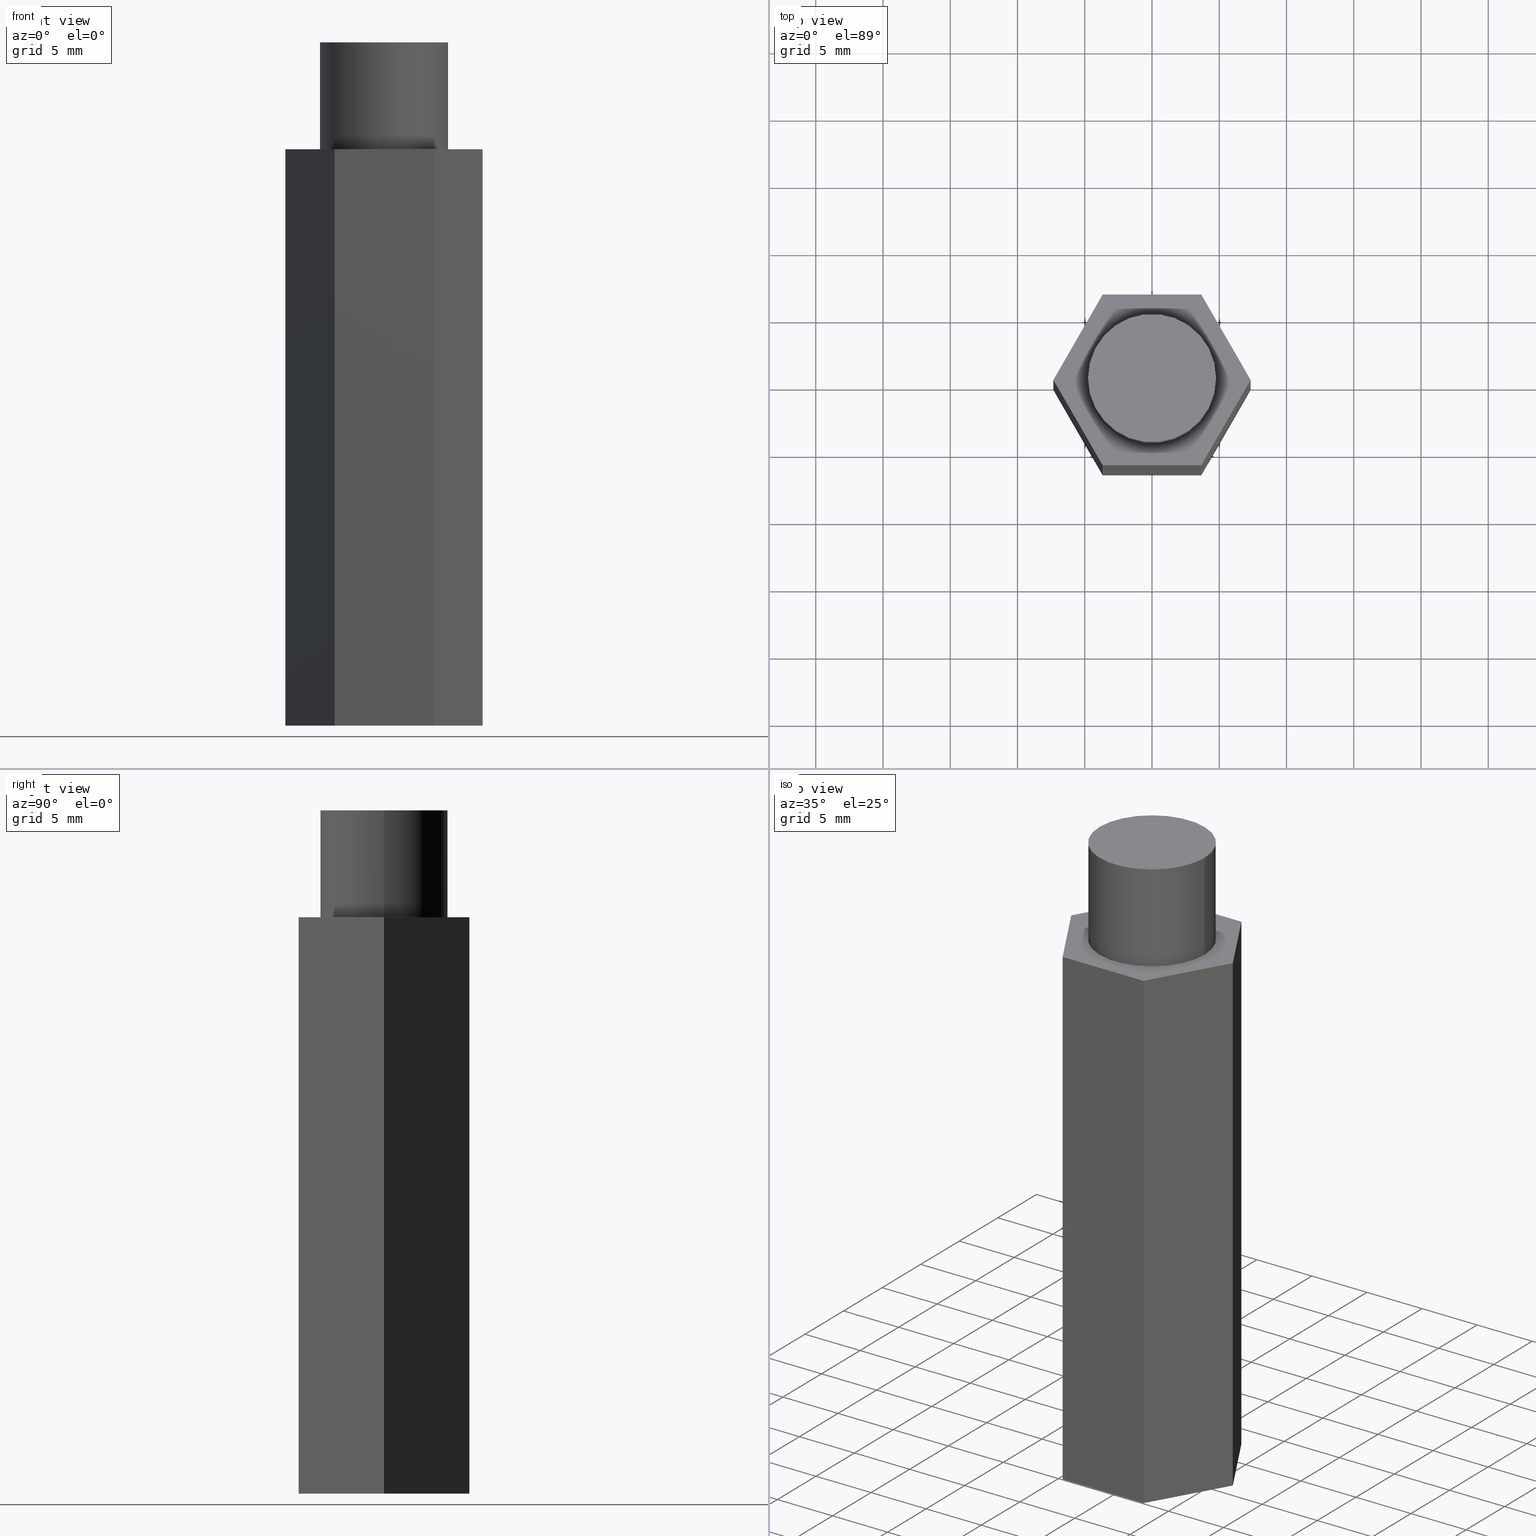
[diagram: canonical four-view strip — front | top / right | iso, engineering-drawing reading convention]
A machine part, canonical four-view strip (front | top / right | iso — engineering-drawing reading convention). The complete STEP part file that produces these views, byte-faithful:
ISO-10303-21;
HEADER;
FILE_DESCRIPTION (( 'STEP AP214' ),
    '1' );
FILE_NAME ('am-0923 Worm Shaft for Worm Gearbox REV2.STEP',
    '2018-06-21T17:12:18',
    ( '' ),
    ( '' ),
    'SwSTEP 2.0',
    'SolidWorks 2017',
    '' );
FILE_SCHEMA (( 'AUTOMOTIVE_DESIGN' ));
ENDSEC;

DATA;
#1 = DIRECTION ( 'NONE',  ( 1.000000000000000000, 0.0000000000000000000, 0.0000000000000000000 ) ) ;
#2 = CARTESIAN_POINT ( 'NONE',  ( -0.1443375672974064600, 0.2500000000000000600, 1.687000000000000100 ) ) ;
#3 = AXIS2_PLACEMENT_3D ( 'NONE', #278, #13, #280 ) ;
#4 = LENGTH_MEASURE_WITH_UNIT ( LENGTH_MEASURE( 0.02539999999999999900 ), #222 );
#5 = EDGE_LOOP ( 'NONE', ( #18, #346, #33, #70 ) ) ;
#6 = ORIENTED_EDGE ( 'NONE', *, *, #327, .F. ) ;
#7 = AXIS2_PLACEMENT_3D ( 'NONE', #204, #34, #60 ) ;
#8 = FACE_OUTER_BOUND ( 'NONE', #333, .T. ) ;
#9 = VERTEX_POINT ( 'NONE', #105 ) ;
#10 = DIRECTION ( 'NONE',  ( -0.5000000000000000000, -0.8660254037844386000, 0.0000000000000000000 ) ) ;
#11 = EDGE_CURVE ( 'NONE', #209, #261, #54, .T. ) ;
#12 = PLANE ( 'NONE',  #115 ) ;
#13 = DIRECTION ( 'NONE',  ( -0.8660254037844386000, -0.5000000000000003300, 0.0000000000000000000 ) ) ;
#14 = ORIENTED_EDGE ( 'NONE', *, *, #48, .F. ) ;
#15 = FILL_AREA_STYLE ('',( #313 ) ) ;
#16 = VERTEX_POINT ( 'NONE', #102 ) ;
#17 = CARTESIAN_POINT ( 'NONE',  ( -0.1443375672974062700, -0.2500000000000001100, 1.687000000000000100 ) ) ;
#18 = ORIENTED_EDGE ( 'NONE', *, *, #272, .T. ) ;
#19 = ADVANCED_BREP_SHAPE_REPRESENTATION ( 'am-0923 Worm Shaft for Worm Gearbox REV2', ( #77, #238 ), #195 ) ;
#20 = FACE_OUTER_BOUND ( 'NONE', #318, .T. ) ;
#21 = CARTESIAN_POINT ( 'NONE',  ( 0.0000000000000000000, 0.0000000000000000000, 2.000000000000000000 ) ) ;
#22 = CIRCLE ( 'NONE', #253, 0.1873999999999999800 ) ;
#23 = ORIENTED_EDGE ( 'NONE', *, *, #247, .F. ) ;
#24 = CLOSED_SHELL ( 'NONE', ( #49, #291, #101, #237, #212, #184, #210, #294, #265, #235, #129 ) ) ;
#25 = AXIS2_PLACEMENT_3D ( 'NONE', #160, #355, #1 ) ;
#26 = CARTESIAN_POINT ( 'NONE',  ( -0.2886751345948129200, 3.414809992080329000E-017, 1.687000000000000100 ) ) ;
#27 = ORIENTED_EDGE ( 'NONE', *, *, #292, .T. ) ;
#28 = SURFACE_SIDE_STYLE ('',( #139 ) ) ;
#29 = CARTESIAN_POINT ( 'NONE',  ( -0.1873999999999999800, 0.0000000000000000000, 1.687000000000000100 ) ) ;
#30 = CARTESIAN_POINT ( 'NONE',  ( -0.2886751345948129200, 3.414809992080329000E-017, 0.0000000000000000000 ) ) ;
#31 = VECTOR ( 'NONE', #66, 39.37007874015748100 ) ;
#32 = FILL_AREA_STYLE_COLOUR ( '', #51 ) ;
#33 = ORIENTED_EDGE ( 'NONE', *, *, #202, .F. ) ;
#34 = DIRECTION ( 'NONE',  ( 0.0000000000000000000, 0.0000000000000000000, 1.000000000000000000 ) ) ;
#35 = DIRECTION ( 'NONE',  ( 0.0000000000000000000, 0.0000000000000000000, 1.000000000000000000 ) ) ;
#36 = CYLINDRICAL_SURFACE ( 'NONE', #348, 0.1873999999999999800 ) ;
#37 = EDGE_LOOP ( 'NONE', ( #285, #82, #182, #306 ) ) ;
#38 = DIRECTION ( 'NONE',  ( 0.5000000000000003300, -0.8660254037844383700, 0.0000000000000000000 ) ) ;
#39 = VECTOR ( 'NONE', #38, 39.37007874015748100 ) ;
#40 =( NAMED_UNIT ( * ) SI_UNIT ( $, .STERADIAN. ) SOLID_ANGLE_UNIT ( ) );
#41 = EDGE_LOOP ( 'NONE', ( #225, #187 ) ) ;
#42 = EDGE_CURVE ( 'NONE', #16, #80, #163, .T. ) ;
#43 = PRODUCT_DEFINITION_SHAPE ( 'NONE', 'NONE',  #130 ) ;
#44 = SURFACE_STYLE_FILL_AREA ( #15 ) ;
#45 = LINE ( 'NONE', #331, #301 ) ;
#46 = DIMENSIONAL_EXPONENTS ( 1.000000000000000000, 0.0000000000000000000, 0.0000000000000000000, 0.0000000000000000000, 0.0000000000000000000, 0.0000000000000000000, 0.0000000000000000000 ) ;
#47 = ORIENTED_EDGE ( 'NONE', *, *, #310, .T. ) ;
#48 = EDGE_CURVE ( 'NONE', #256, #316, #107, .T. ) ;
#49 = ADVANCED_FACE ( 'NONE', ( #62 ), #205, .T. ) ;
#50 = CARTESIAN_POINT ( 'NONE',  ( 0.1443375672974065200, -0.2500000000000000600, 0.0000000000000000000 ) ) ;
#51 = COLOUR_RGB ( '',0.7921568627450980000, 0.8196078431372548800, 0.9333333333333333500 ) ;
#52 = MECHANICAL_DESIGN_GEOMETRIC_PRESENTATION_REPRESENTATION (  '', ( #264 ), #67 ) ;
#53 = EDGE_LOOP ( 'NONE', ( #134, #352, #96, #108, #169, #71 ) ) ;
#54 = LINE ( 'NONE', #50, #111 ) ;
#55 = CARTESIAN_POINT ( 'NONE',  ( -0.1873999999999999800, 0.0000000000000000000, 2.000000000000000000 ) ) ;
#56 = DIRECTION ( 'NONE',  ( 1.000000000000000000, 0.0000000000000000000, -0.0000000000000000000 ) ) ;
#57 = PLANE ( 'NONE',  #97 ) ;
#58 = EDGE_LOOP ( 'NONE', ( #76, #132, #286, #260, #74, #200 ) ) ;
#59 = CARTESIAN_POINT ( 'NONE',  ( -0.2886751345948129200, 3.414809992080329000E-017, 0.0000000000000000000 ) ) ;
#60 = DIRECTION ( 'NONE',  ( 1.000000000000000000, 0.0000000000000000000, -0.0000000000000000000 ) ) ;
#61 = DIRECTION ( 'NONE',  ( -0.0000000000000000000, -0.0000000000000000000, -1.000000000000000000 ) ) ;
#62 = FACE_OUTER_BOUND ( 'NONE', #211, .T. ) ;
#63 = CARTESIAN_POINT ( 'NONE',  ( 0.2886751345948129200, -7.469896857675719000E-018, 0.0000000000000000000 ) ) ;
#64 = DIRECTION ( 'NONE',  ( -1.000000000000000000, -1.182924880895401300E-016, 0.0000000000000000000 ) ) ;
#65 = ORIENTED_EDGE ( 'NONE', *, *, #181, .T. ) ;
#66 = DIRECTION ( 'NONE',  ( 1.000000000000000000, 2.365849761790803000E-016, 0.0000000000000000000 ) ) ;
#67 =( GEOMETRIC_REPRESENTATION_CONTEXT ( 3 ) GLOBAL_UNCERTAINTY_ASSIGNED_CONTEXT ( ( #180 ) ) GLOBAL_UNIT_ASSIGNED_CONTEXT ( ( #216, #334, #303 ) ) REPRESENTATION_CONTEXT ( 'NONE', 'WORKASPACE' ) );
#68 = PRODUCT_CONTEXT ( 'NONE', #152, 'mechanical' ) ;
#69 = VECTOR ( 'NONE', #64, 39.37007874015748100 ) ;
#70 = ORIENTED_EDGE ( 'NONE', *, *, #147, .T. ) ;
#71 = ORIENTED_EDGE ( 'NONE', *, *, #247, .T. ) ;
#72 = VECTOR ( 'NONE', #121, 39.37007874015748100 ) ;
#73 = AXIS2_PLACEMENT_3D ( 'NONE', #201, #88, #175 ) ;
#74 = ORIENTED_EDGE ( 'NONE', *, *, #272, .F. ) ;
#75 = VERTEX_POINT ( 'NONE', #26 ) ;
#76 = ORIENTED_EDGE ( 'NONE', *, *, #292, .F. ) ;
#77 = MANIFOLD_SOLID_BREP ( 'Boss-Extrude2', #24 ) ;
#78 = CARTESIAN_POINT ( 'NONE',  ( 0.1443375672974063800, 0.2500000000000000600, 1.687000000000000100 ) ) ;
#79 = CIRCLE ( 'NONE', #232, 0.1873999999999999800 ) ;
#80 = VERTEX_POINT ( 'NONE', #59 ) ;
#81 = DIRECTION ( 'NONE',  ( 0.5000000000000000000, 0.8660254037844386000, 0.0000000000000000000 ) ) ;
#82 = ORIENTED_EDGE ( 'NONE', *, *, #310, .F. ) ;
#83 = CARTESIAN_POINT ( 'NONE',  ( 0.1443375672974063800, 0.2500000000000000600, 1.687000000000000100 ) ) ;
#84 = DIRECTION ( 'NONE',  ( -0.5000000000000002200, 0.8660254037844384900, 0.0000000000000000000 ) ) ;
#85 = PRESENTATION_LAYER_ASSIGNMENT (  '', '', ( #264 ) ) ;
#86 = LENGTH_MEASURE_WITH_UNIT ( LENGTH_MEASURE( 0.02539999999999999900 ), #90 );
#87 = VERTEX_POINT ( 'NONE', #136 ) ;
#88 = DIRECTION ( 'NONE',  ( -0.8660254037844387100, 0.4999999999999998900, 0.0000000000000000000 ) ) ;
#89 = DIRECTION ( 'NONE',  ( 1.000000000000000000, 2.365849761790803000E-016, 0.0000000000000000000 ) ) ;
#90 =( LENGTH_UNIT ( ) NAMED_UNIT ( * ) SI_UNIT ( $, .METRE. ) );
#91 = VECTOR ( 'NONE', #10, 39.37007874015748900 ) ;
#92 = DIRECTION ( 'NONE',  ( -0.5000000000000003300, 0.8660254037844383700, 0.0000000000000000000 ) ) ;
#93 = FACE_OUTER_BOUND ( 'NONE', #37, .T. ) ;
#94 = DIRECTION ( 'NONE',  ( -0.0000000000000000000, -0.0000000000000000000, -1.000000000000000000 ) ) ;
#95 = CARTESIAN_POINT ( 'NONE',  ( 0.1443375672974063800, 0.2500000000000000600, 1.687000000000000100 ) ) ;
#96 = ORIENTED_EDGE ( 'NONE', *, *, #202, .T. ) ;
#97 = AXIS2_PLACEMENT_3D ( 'NONE', #109, #298, #56 ) ;
#98 = COLOUR_RGB ( '',0.7921568627450980000, 0.8196078431372548800, 0.9333333333333333500 ) ;
#99 = VECTOR ( 'NONE', #305, 39.37007874015748100 ) ;
#100 = VERTEX_POINT ( 'NONE', #29 ) ;
#101 = ADVANCED_FACE ( 'NONE', ( #8 ), #142, .F. ) ;
#102 = CARTESIAN_POINT ( 'NONE',  ( -0.1443375672974064600, 0.2500000000000000600, 0.0000000000000000000 ) ) ;
#103 = LINE ( 'NONE', #95, #223 ) ;
#104 = VERTEX_POINT ( 'NONE', #78 ) ;
#105 = CARTESIAN_POINT ( 'NONE',  ( -0.1443375672974062700, -0.2500000000000001100, 0.0000000000000000000 ) ) ;
#106 = SURFACE_STYLE_USAGE ( .BOTH. , #28 ) ;
#107 = CIRCLE ( 'NONE', #25, 0.1873999999999999800 ) ;
#108 = ORIENTED_EDGE ( 'NONE', *, *, #327, .T. ) ;
#109 = CARTESIAN_POINT ( 'NONE',  ( 0.0000000000000000000, 0.0000000000000000000, 2.000000000000000000 ) ) ;
#110 = PRODUCT_DEFINITION_CONTEXT ( 'detailed design', #177, 'design' ) ;
#111 = VECTOR ( 'NONE', #320, 39.37007874015748900 ) ;
#112 = FILL_AREA_STYLE ('',( #32 ) ) ;
#113 = CARTESIAN_POINT ( 'NONE',  ( 0.1443375672974063800, 0.2500000000000000600, 0.0000000000000000000 ) ) ;
#114 = DIRECTION ( 'NONE',  ( 1.000000000000000000, 0.0000000000000000000, -0.0000000000000000000 ) ) ;
#115 = AXIS2_PLACEMENT_3D ( 'NONE', #339, #252, #92 ) ;
#116 = ORIENTED_EDGE ( 'NONE', *, *, #287, .F. ) ;
#117 = CARTESIAN_POINT ( 'NONE',  ( 0.1443375672974063800, 0.2500000000000000600, 0.0000000000000000000 ) ) ;
#118 = APPLICATION_PROTOCOL_DEFINITION ( 'draft international standard', 'automotive_design', 1998, #177 ) ;
#119 = DIRECTION ( 'NONE',  ( 0.0000000000000000000, 0.0000000000000000000, 1.000000000000000000 ) ) ;
#120 = SURFACE_STYLE_USAGE ( .BOTH. , #257 ) ;
#121 = DIRECTION ( 'NONE',  ( -0.0000000000000000000, -0.0000000000000000000, -1.000000000000000000 ) ) ;
#122 =( CONVERSION_BASED_UNIT ( 'INCH', #309 ) LENGTH_UNIT ( ) NAMED_UNIT ( #155 ) );
#123 = ORIENTED_EDGE ( 'NONE', *, *, #48, .T. ) ;
#124 = VECTOR ( 'NONE', #94, 39.37007874015748100 ) ;
#125 = LINE ( 'NONE', #117, #340 ) ;
#126 = EDGE_LOOP ( 'NONE', ( #353, #159, #6, #297 ) ) ;
#127 = EDGE_CURVE ( 'NONE', #219, #296, #349, .T. ) ;
#128 = UNCERTAINTY_MEASURE_WITH_UNIT (LENGTH_MEASURE( 1.000000000000000100E-005 ), #150, 'distance_accuracy_value', 'NONE');
#129 = ADVANCED_FACE ( 'NONE', ( #274 ), #57, .T. ) ;
#130 = PRODUCT_DEFINITION ( 'UNKNOWN', '', #259, #110 ) ;
#131 = CIRCLE ( 'NONE', #174, 0.1873999999999999800 ) ;
#132 = ORIENTED_EDGE ( 'NONE', *, *, #207, .F. ) ;
#133 = ORIENTED_EDGE ( 'NONE', *, *, #11, .T. ) ;
#134 = ORIENTED_EDGE ( 'NONE', *, *, #351, .T. ) ;
#135 = DIRECTION ( 'NONE',  ( -1.000000000000000000, 0.0000000000000000000, 0.0000000000000000000 ) ) ;
#136 = CARTESIAN_POINT ( 'NONE',  ( 0.1873999999999999800, 2.294988101602139800E-017, 1.687000000000000100 ) ) ;
#137 = PRODUCT_RELATED_PRODUCT_CATEGORY ( 'part', '', ( #239 ) ) ;
#138 = DIRECTION ( 'NONE',  ( -2.365849761790803000E-016, 1.000000000000000000, 0.0000000000000000000 ) ) ;
#139 = SURFACE_STYLE_FILL_AREA ( #112 ) ;
#140 = VERTEX_POINT ( 'NONE', #221 ) ;
#141 = ORIENTED_EDGE ( 'NONE', *, *, #161, .T. ) ;
#142 = PLANE ( 'NONE',  #166 ) ;
#143 = CARTESIAN_POINT ( 'NONE',  ( 0.2886751345948129200, -7.469896857675719000E-018, 1.687000000000000100 ) ) ;
#144 = CARTESIAN_POINT ( 'NONE',  ( -0.2886751345948129200, 3.414809992080329000E-017, 1.687000000000000100 ) ) ;
#145 = LINE ( 'NONE', #273, #269 ) ;
#146 = CARTESIAN_POINT ( 'NONE',  ( -0.1443375672974062700, -0.2500000000000001100, 0.0000000000000000000 ) ) ;
#147 = EDGE_CURVE ( 'NONE', #296, #261, #45, .T. ) ;
#148 = PLANE ( 'NONE',  #73 ) ;
#149 = LINE ( 'NONE', #144, #39 ) ;
#150 =( CONVERSION_BASED_UNIT ( 'INCH', #86 ) LENGTH_UNIT ( ) NAMED_UNIT ( #350 ) );
#151 = DIRECTION ( 'NONE',  ( 1.000000000000000000, 0.0000000000000000000, 0.0000000000000000000 ) ) ;
#152 = APPLICATION_CONTEXT ( 'automotive_design' ) ;
#153 = FACE_OUTER_BOUND ( 'NONE', #157, .T. ) ;
#154 = EDGE_LOOP ( 'NONE', ( #123, #246 ) ) ;
#155 = DIMENSIONAL_EXPONENTS ( 1.000000000000000000, 0.0000000000000000000, 0.0000000000000000000, 0.0000000000000000000, 0.0000000000000000000, 0.0000000000000000000, 0.0000000000000000000 ) ;
#156 = LINE ( 'NONE', #228, #91 ) ;
#157 = EDGE_LOOP ( 'NONE', ( #133, #213, #234, #277 ) ) ;
#158 = AXIS2_PLACEMENT_3D ( 'NONE', #83, #192, #332 ) ;
#159 = ORIENTED_EDGE ( 'NONE', *, *, #323, .F. ) ;
#160 = CARTESIAN_POINT ( 'NONE',  ( 0.0000000000000000000, 0.0000000000000000000, 2.000000000000000000 ) ) ;
#161 = EDGE_CURVE ( 'NONE', #100, #87, #131, .T. ) ;
#162 = VECTOR ( 'NONE', #61, 39.37007874015748100 ) ;
#163 = LINE ( 'NONE', #240, #236 ) ;
#164 = PLANE ( 'NONE',  #268 ) ;
#165 = DIRECTION ( 'NONE',  ( 0.4999999999999998300, 0.8660254037844386000, 0.0000000000000000000 ) ) ;
#166 = AXIS2_PLACEMENT_3D ( 'NONE', #243, #138, #304 ) ;
#167 = CARTESIAN_POINT ( 'NONE',  ( 0.0000000000000000000, 0.0000000000000000000, 1.687000000000000100 ) ) ;
#168 = DIRECTION ( 'NONE',  ( -0.0000000000000000000, -0.0000000000000000000, -1.000000000000000000 ) ) ;
#169 = ORIENTED_EDGE ( 'NONE', *, *, #262, .T. ) ;
#170 = CARTESIAN_POINT ( 'NONE',  ( 0.1443375672974065200, -0.2500000000000000600, 1.687000000000000100 ) ) ;
#171 = EDGE_CURVE ( 'NONE', #256, #100, #214, .T. ) ;
#172 = DIRECTION ( 'NONE',  ( -1.000000000000000000, 0.0000000000000000000, 0.0000000000000000000 ) ) ;
#173 = DIRECTION ( 'NONE',  ( -0.0000000000000000000, -0.0000000000000000000, -1.000000000000000000 ) ) ;
#174 = AXIS2_PLACEMENT_3D ( 'NONE', #167, #248, #188 ) ;
#175 = DIRECTION ( 'NONE',  ( -0.4999999999999998300, -0.8660254037844386000, 0.0000000000000000000 ) ) ;
#176 = DIRECTION ( 'NONE',  ( 0.0000000000000000000, 0.0000000000000000000, 1.000000000000000000 ) ) ;
#177 = APPLICATION_CONTEXT ( 'automotive_design' ) ;
#178 = LINE ( 'NONE', #344, #69 ) ;
#179 = ORIENTED_EDGE ( 'NONE', *, *, #266, .T. ) ;
#180 = UNCERTAINTY_MEASURE_WITH_UNIT (LENGTH_MEASURE( 1.000000000000000100E-005 ), #216, 'distance_accuracy_value', 'NONE');
#181 = EDGE_CURVE ( 'NONE', #316, #87, #267, .T. ) ;
#182 = ORIENTED_EDGE ( 'NONE', *, *, #262, .F. ) ;
#183 = AXIS2_PLACEMENT_3D ( 'NONE', #336, #119, #114 ) ;
#184 = ADVANCED_FACE ( 'NONE', ( #281 ), #249, .F. ) ;
#185 = LINE ( 'NONE', #335, #72 ) ;
#186 = ORIENTED_EDGE ( 'NONE', *, *, #171, .F. ) ;
#187 = ORIENTED_EDGE ( 'NONE', *, *, #266, .F. ) ;
#188 = DIRECTION ( 'NONE',  ( 1.000000000000000000, 0.0000000000000000000, 0.0000000000000000000 ) ) ;
#189 = DIRECTION ( 'NONE',  ( 0.8660254037844387100, -0.5000000000000001100, 0.0000000000000000000 ) ) ;
#190 = PLANE ( 'NONE',  #3 ) ;
#191 = VECTOR ( 'NONE', #168, 39.37007874015748100 ) ;
#192 = DIRECTION ( 'NONE',  ( 1.182924880895401300E-016, -1.000000000000000000, 0.0000000000000000000 ) ) ;
#193 = ORIENTED_EDGE ( 'NONE', *, *, #226, .F. ) ;
#194 = DIRECTION ( 'NONE',  ( 0.5000000000000003300, -0.8660254037844383700, 0.0000000000000000000 ) ) ;
#195 =( GEOMETRIC_REPRESENTATION_CONTEXT ( 3 ) GLOBAL_UNCERTAINTY_ASSIGNED_CONTEXT ( ( #242 ) ) GLOBAL_UNIT_ASSIGNED_CONTEXT ( ( #122, #206, #40 ) ) REPRESENTATION_CONTEXT ( 'NONE', 'WORKASPACE' ) );
#196 = CARTESIAN_POINT ( 'NONE',  ( 0.2886751345948129200, -7.469896857675719000E-018, 0.0000000000000000000 ) ) ;
#197 = CARTESIAN_POINT ( 'NONE',  ( -0.1443375672974062700, -0.2500000000000001100, 1.687000000000000100 ) ) ;
#198 = SHAPE_DEFINITION_REPRESENTATION ( #43, #19 ) ;
#199 = VECTOR ( 'NONE', #194, 39.37007874015748100 ) ;
#200 = ORIENTED_EDGE ( 'NONE', *, *, #11, .F. ) ;
#201 = CARTESIAN_POINT ( 'NONE',  ( 0.1443375672974065200, -0.2500000000000000600, 1.687000000000000100 ) ) ;
#202 = EDGE_CURVE ( 'NONE', #296, #104, #145, .T. ) ;
#203 = PLANE ( 'NONE',  #183 ) ;
#204 = CARTESIAN_POINT ( 'NONE',  ( 0.1443375672974065200, -0.2500000000000000600, 1.687000000000000100 ) ) ;
#205 = CYLINDRICAL_SURFACE ( 'NONE', #354, 0.1873999999999999800 ) ;
#206 =( NAMED_UNIT ( * ) PLANE_ANGLE_UNIT ( ) SI_UNIT ( $, .RADIAN. ) );
#207 = EDGE_CURVE ( 'NONE', #80, #9, #329, .T. ) ;
#208 = LINE ( 'NONE', #196, #338 ) ;
#209 = VERTEX_POINT ( 'NONE', #299 ) ;
#210 = ADVANCED_FACE ( 'NONE', ( #93 ), #164, .F. ) ;
#211 = EDGE_LOOP ( 'NONE', ( #290, #65, #179, #186 ) ) ;
#212 = ADVANCED_FACE ( 'NONE', ( #317 ), #190, .F. ) ;
#213 = ORIENTED_EDGE ( 'NONE', *, *, #147, .F. ) ;
#214 = LINE ( 'NONE', #55, #191 ) ;
#215 = EDGE_CURVE ( 'NONE', #341, #16, #125, .T. ) ;
#216 =( CONVERSION_BASED_UNIT ( 'INCH', #4 ) LENGTH_UNIT ( ) NAMED_UNIT ( #46 ) );
#217 = CARTESIAN_POINT ( 'NONE',  ( 0.1873999999999999800, 2.294988101602139800E-017, 2.000000000000000000 ) ) ;
#218 = LINE ( 'NONE', #170, #162 ) ;
#219 = VERTEX_POINT ( 'NONE', #279 ) ;
#220 = ORIENTED_EDGE ( 'NONE', *, *, #171, .T. ) ;
#221 = CARTESIAN_POINT ( 'NONE',  ( -0.1443375672974064600, 0.2500000000000000600, 1.687000000000000100 ) ) ;
#222 =( LENGTH_UNIT ( ) NAMED_UNIT ( * ) SI_UNIT ( $, .METRE. ) );
#223 = VECTOR ( 'NONE', #230, 39.37007874015748100 ) ;
#224 = DIRECTION ( 'NONE',  ( 1.000000000000000000, 0.0000000000000000000, 0.0000000000000000000 ) ) ;
#225 = ORIENTED_EDGE ( 'NONE', *, *, #161, .F. ) ;
#226 = EDGE_CURVE ( 'NONE', #357, #9, #245, .T. ) ;
#227 = DIRECTION ( 'NONE',  ( -0.5000000000000002200, 0.8660254037844384900, 0.0000000000000000000 ) ) ;
#228 = CARTESIAN_POINT ( 'NONE',  ( -0.1443375672974064600, 0.2500000000000000600, 1.687000000000000100 ) ) ;
#229 = CARTESIAN_POINT ( 'NONE',  ( -0.1443375672974062700, -0.2500000000000001100, 1.687000000000000100 ) ) ;
#230 = DIRECTION ( 'NONE',  ( -0.0000000000000000000, -0.0000000000000000000, -1.000000000000000000 ) ) ;
#231 = APPLICATION_PROTOCOL_DEFINITION ( 'draft international standard', 'automotive_design', 1998, #152 ) ;
#232 = AXIS2_PLACEMENT_3D ( 'NONE', #342, #35, #307 ) ;
#233 = FACE_BOUND ( 'NONE', #41, .T. ) ;
#234 = ORIENTED_EDGE ( 'NONE', *, *, #127, .F. ) ;
#235 = ADVANCED_FACE ( 'NONE', ( #255 ), #36, .T. ) ;
#236 = VECTOR ( 'NONE', #324, 39.37007874015748900 ) ;
#237 = ADVANCED_FACE ( 'NONE', ( #153 ), #148, .F. ) ;
#238 = AXIS2_PLACEMENT_3D ( 'NONE', #315, #314, #151 ) ;
#239 = PRODUCT ( 'am-0923 Worm Shaft for Worm Gearbox REV2', 'am-0923 Worm Shaft for Worm Gearbox REV2', '', ( #68 ) ) ;
#240 = CARTESIAN_POINT ( 'NONE',  ( -0.1443375672974064600, 0.2500000000000000600, 0.0000000000000000000 ) ) ;
#241 = EDGE_CURVE ( 'NONE', #316, #256, #79, .T. ) ;
#242 = UNCERTAINTY_MEASURE_WITH_UNIT (LENGTH_MEASURE( 1.000000000000000100E-005 ), #122, 'distance_accuracy_value', 'NONE');
#243 = CARTESIAN_POINT ( 'NONE',  ( -0.1443375672974062700, -0.2500000000000001100, 1.687000000000000100 ) ) ;
#244 = VECTOR ( 'NONE', #89, 39.37007874015748100 ) ;
#245 = LINE ( 'NONE', #197, #99 ) ;
#246 = ORIENTED_EDGE ( 'NONE', *, *, #241, .T. ) ;
#247 = EDGE_CURVE ( 'NONE', #75, #357, #149, .T. ) ;
#248 = DIRECTION ( 'NONE',  ( 0.0000000000000000000, 0.0000000000000000000, 1.000000000000000000 ) ) ;
#249 = PLANE ( 'NONE',  #158 ) ;
#250 = FACE_OUTER_BOUND ( 'NONE', #53, .T. ) ;
#251 = ORIENTED_EDGE ( 'NONE', *, *, #351, .F. ) ;
#252 = DIRECTION ( 'NONE',  ( 0.8660254037844384900, 0.5000000000000004400, -0.0000000000000000000 ) ) ;
#253 = AXIS2_PLACEMENT_3D ( 'NONE', #343, #176, #224 ) ;
#254 = CARTESIAN_POINT ( 'NONE',  ( -0.2886751345948129200, 3.414809992080329000E-017, 1.687000000000000100 ) ) ;
#255 = FACE_OUTER_BOUND ( 'NONE', #311, .T. ) ;
#256 = VERTEX_POINT ( 'NONE', #284 ) ;
#257 = SURFACE_SIDE_STYLE ('',( #44 ) ) ;
#258 =( LENGTH_UNIT ( ) NAMED_UNIT ( * ) SI_UNIT ( $, .METRE. ) );
#259 = PRODUCT_DEFINITION_FORMATION_WITH_SPECIFIED_SOURCE ( 'ANY', '', #239, .NOT_KNOWN. ) ;
#260 = ORIENTED_EDGE ( 'NONE', *, *, #215, .F. ) ;
#261 = VERTEX_POINT ( 'NONE', #63 ) ;
#262 = EDGE_CURVE ( 'NONE', #140, #75, #156, .T. ) ;
#263 = LINE ( 'NONE', #17, #31 ) ;
#264 = STYLED_ITEM ( 'NONE', ( #356 ), #77 ) ;
#265 = ADVANCED_FACE ( 'NONE', ( #321 ), #203, .F. ) ;
#266 = EDGE_CURVE ( 'NONE', #87, #100, #22, .T. ) ;
#267 = LINE ( 'NONE', #217, #289 ) ;
#268 = AXIS2_PLACEMENT_3D ( 'NONE', #2, #189, #81 ) ;
#269 = VECTOR ( 'NONE', #84, 39.37007874015749600 ) ;
#270 = ORIENTED_EDGE ( 'NONE', *, *, #181, .F. ) ;
#271 = CARTESIAN_POINT ( 'NONE',  ( 0.1443375672974065200, -0.2500000000000000600, 1.687000000000000100 ) ) ;
#272 = EDGE_CURVE ( 'NONE', #261, #341, #208, .T. ) ;
#273 = CARTESIAN_POINT ( 'NONE',  ( 0.2886751345948129200, -7.469896857675719000E-018, 1.687000000000000100 ) ) ;
#274 = FACE_OUTER_BOUND ( 'NONE', #154, .T. ) ;
#275 = DIRECTION ( 'NONE',  ( -0.0000000000000000000, -0.0000000000000000000, -1.000000000000000000 ) ) ;
#276 =( GEOMETRIC_REPRESENTATION_CONTEXT ( 3 ) GLOBAL_UNCERTAINTY_ASSIGNED_CONTEXT ( ( #128 ) ) GLOBAL_UNIT_ASSIGNED_CONTEXT ( ( #150, #283, #347 ) ) REPRESENTATION_CONTEXT ( 'NONE', 'WORKASPACE' ) );
#277 = ORIENTED_EDGE ( 'NONE', *, *, #287, .T. ) ;
#278 = CARTESIAN_POINT ( 'NONE',  ( 0.2886751345948129200, -7.469896857675719000E-018, 1.687000000000000100 ) ) ;
#279 = CARTESIAN_POINT ( 'NONE',  ( 0.1443375672974065200, -0.2500000000000000600, 1.687000000000000100 ) ) ;
#280 = DIRECTION ( 'NONE',  ( 0.5000000000000002200, -0.8660254037844384900, 0.0000000000000000000 ) ) ;
#281 = FACE_OUTER_BOUND ( 'NONE', #126, .T. ) ;
#282 = CARTESIAN_POINT ( 'NONE',  ( 0.1873999999999999800, 2.294988101602139800E-017, 2.000000000000000000 ) ) ;
#283 =( NAMED_UNIT ( * ) PLANE_ANGLE_UNIT ( ) SI_UNIT ( $, .RADIAN. ) );
#284 = CARTESIAN_POINT ( 'NONE',  ( -0.1873999999999999800, 0.0000000000000000000, 2.000000000000000000 ) ) ;
#285 = ORIENTED_EDGE ( 'NONE', *, *, #42, .T. ) ;
#286 = ORIENTED_EDGE ( 'NONE', *, *, #42, .F. ) ;
#287 = EDGE_CURVE ( 'NONE', #219, #209, #218, .T. ) ;
#288 = STYLED_ITEM ( 'NONE', ( #293 ), #19 ) ;
#289 = VECTOR ( 'NONE', #275, 39.37007874015748100 ) ;
#290 = ORIENTED_EDGE ( 'NONE', *, *, #241, .F. ) ;
#291 = ADVANCED_FACE ( 'NONE', ( #250, #233 ), #312, .T. ) ;
#292 = EDGE_CURVE ( 'NONE', #9, #209, #300, .T. ) ;
#293 = PRESENTATION_STYLE_ASSIGNMENT (( #120 ) ) ;
#294 = ADVANCED_FACE ( 'NONE', ( #20 ), #12, .F. ) ;
#295 = ORIENTED_EDGE ( 'NONE', *, *, #207, .T. ) ;
#296 = VERTEX_POINT ( 'NONE', #143 ) ;
#297 = ORIENTED_EDGE ( 'NONE', *, *, #337, .T. ) ;
#298 = DIRECTION ( 'NONE',  ( 0.0000000000000000000, 0.0000000000000000000, 1.000000000000000000 ) ) ;
#299 = CARTESIAN_POINT ( 'NONE',  ( 0.1443375672974065200, -0.2500000000000000600, 0.0000000000000000000 ) ) ;
#300 = LINE ( 'NONE', #146, #244 ) ;
#301 = VECTOR ( 'NONE', #330, 39.37007874015748100 ) ;
#302 = CARTESIAN_POINT ( 'NONE',  ( 0.0000000000000000000, 0.0000000000000000000, 2.000000000000000000 ) ) ;
#303 =( NAMED_UNIT ( * ) SI_UNIT ( $, .STERADIAN. ) SOLID_ANGLE_UNIT ( ) );
#304 = DIRECTION ( 'NONE',  ( -1.000000000000000000, -2.365849761790803000E-016, 0.0000000000000000000 ) ) ;
#305 = DIRECTION ( 'NONE',  ( -0.0000000000000000000, -0.0000000000000000000, -1.000000000000000000 ) ) ;
#306 = ORIENTED_EDGE ( 'NONE', *, *, #323, .T. ) ;
#307 = DIRECTION ( 'NONE',  ( 1.000000000000000000, 0.0000000000000000000, 0.0000000000000000000 ) ) ;
#308 = DIRECTION ( 'NONE',  ( -1.000000000000000000, -1.182924880895401300E-016, 0.0000000000000000000 ) ) ;
#309 = LENGTH_MEASURE_WITH_UNIT ( LENGTH_MEASURE( 0.02539999999999999900 ), #258 );
#310 = EDGE_CURVE ( 'NONE', #75, #80, #328, .T. ) ;
#311 = EDGE_LOOP ( 'NONE', ( #270, #14, #220, #141 ) ) ;
#312 = PLANE ( 'NONE',  #7 ) ;
#313 = FILL_AREA_STYLE_COLOUR ( '', #98 ) ;
#314 = DIRECTION ( 'NONE',  ( 0.0000000000000000000, 0.0000000000000000000, 1.000000000000000000 ) ) ;
#315 = CARTESIAN_POINT ( 'NONE',  ( 0.0000000000000000000, 0.0000000000000000000, 0.0000000000000000000 ) ) ;
#316 = VERTEX_POINT ( 'NONE', #282 ) ;
#317 = FACE_OUTER_BOUND ( 'NONE', #5, .T. ) ;
#318 = EDGE_LOOP ( 'NONE', ( #295, #193, #23, #47 ) ) ;
#319 = PRESENTATION_LAYER_ASSIGNMENT (  '', '', ( #288 ) ) ;
#320 = DIRECTION ( 'NONE',  ( 0.4999999999999998300, 0.8660254037844386000, 0.0000000000000000000 ) ) ;
#321 = FACE_OUTER_BOUND ( 'NONE', #58, .T. ) ;
#322 = ORIENTED_EDGE ( 'NONE', *, *, #226, .T. ) ;
#323 = EDGE_CURVE ( 'NONE', #140, #16, #185, .T. ) ;
#324 = DIRECTION ( 'NONE',  ( -0.5000000000000000000, -0.8660254037844386000, 0.0000000000000000000 ) ) ;
#325 = MECHANICAL_DESIGN_GEOMETRIC_PRESENTATION_REPRESENTATION (  '', ( #288 ), #276 ) ;
#326 = DIRECTION ( 'NONE',  ( -0.0000000000000000000, -0.0000000000000000000, -1.000000000000000000 ) ) ;
#327 = EDGE_CURVE ( 'NONE', #104, #140, #178, .T. ) ;
#328 = LINE ( 'NONE', #254, #124 ) ;
#329 = LINE ( 'NONE', #30, #199 ) ;
#330 = DIRECTION ( 'NONE',  ( -0.0000000000000000000, -0.0000000000000000000, -1.000000000000000000 ) ) ;
#331 = CARTESIAN_POINT ( 'NONE',  ( 0.2886751345948129200, -7.469896857675719000E-018, 1.687000000000000100 ) ) ;
#332 = DIRECTION ( 'NONE',  ( 1.000000000000000000, 1.182924880895401300E-016, 0.0000000000000000000 ) ) ;
#333 = EDGE_LOOP ( 'NONE', ( #27, #116, #251, #322 ) ) ;
#334 =( NAMED_UNIT ( * ) PLANE_ANGLE_UNIT ( ) SI_UNIT ( $, .RADIAN. ) );
#335 = CARTESIAN_POINT ( 'NONE',  ( -0.1443375672974064600, 0.2500000000000000600, 1.687000000000000100 ) ) ;
#336 = CARTESIAN_POINT ( 'NONE',  ( 0.1443375672974065200, -0.2500000000000000600, 0.0000000000000000000 ) ) ;
#337 = EDGE_CURVE ( 'NONE', #104, #341, #103, .T. ) ;
#338 = VECTOR ( 'NONE', #227, 39.37007874015749600 ) ;
#339 = CARTESIAN_POINT ( 'NONE',  ( -0.2886751345948129200, 3.414809992080329000E-017, 1.687000000000000100 ) ) ;
#340 = VECTOR ( 'NONE', #308, 39.37007874015748100 ) ;
#341 = VERTEX_POINT ( 'NONE', #113 ) ;
#342 = CARTESIAN_POINT ( 'NONE',  ( 0.0000000000000000000, 0.0000000000000000000, 2.000000000000000000 ) ) ;
#343 = CARTESIAN_POINT ( 'NONE',  ( 0.0000000000000000000, 0.0000000000000000000, 1.687000000000000100 ) ) ;
#344 = CARTESIAN_POINT ( 'NONE',  ( 0.1443375672974063800, 0.2500000000000000600, 1.687000000000000100 ) ) ;
#345 = VECTOR ( 'NONE', #165, 39.37007874015748900 ) ;
#346 = ORIENTED_EDGE ( 'NONE', *, *, #337, .F. ) ;
#347 =( NAMED_UNIT ( * ) SI_UNIT ( $, .STERADIAN. ) SOLID_ANGLE_UNIT ( ) );
#348 = AXIS2_PLACEMENT_3D ( 'NONE', #302, #173, #172 ) ;
#349 = LINE ( 'NONE', #271, #345 ) ;
#350 = DIMENSIONAL_EXPONENTS ( 1.000000000000000000, 0.0000000000000000000, 0.0000000000000000000, 0.0000000000000000000, 0.0000000000000000000, 0.0000000000000000000, 0.0000000000000000000 ) ;
#351 = EDGE_CURVE ( 'NONE', #357, #219, #263, .T. ) ;
#352 = ORIENTED_EDGE ( 'NONE', *, *, #127, .T. ) ;
#353 = ORIENTED_EDGE ( 'NONE', *, *, #215, .T. ) ;
#354 = AXIS2_PLACEMENT_3D ( 'NONE', #21, #326, #135 ) ;
#355 = DIRECTION ( 'NONE',  ( 0.0000000000000000000, 0.0000000000000000000, 1.000000000000000000 ) ) ;
#356 = PRESENTATION_STYLE_ASSIGNMENT (( #106 ) ) ;
#357 = VERTEX_POINT ( 'NONE', #229 ) ;
ENDSEC;
END-ISO-10303-21;
